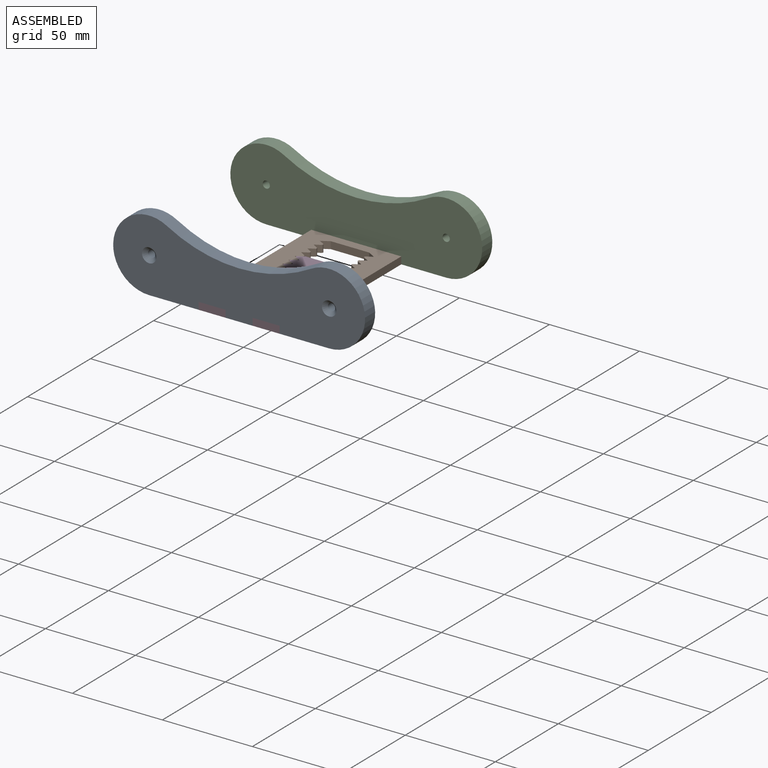
[diagram: assembled view]
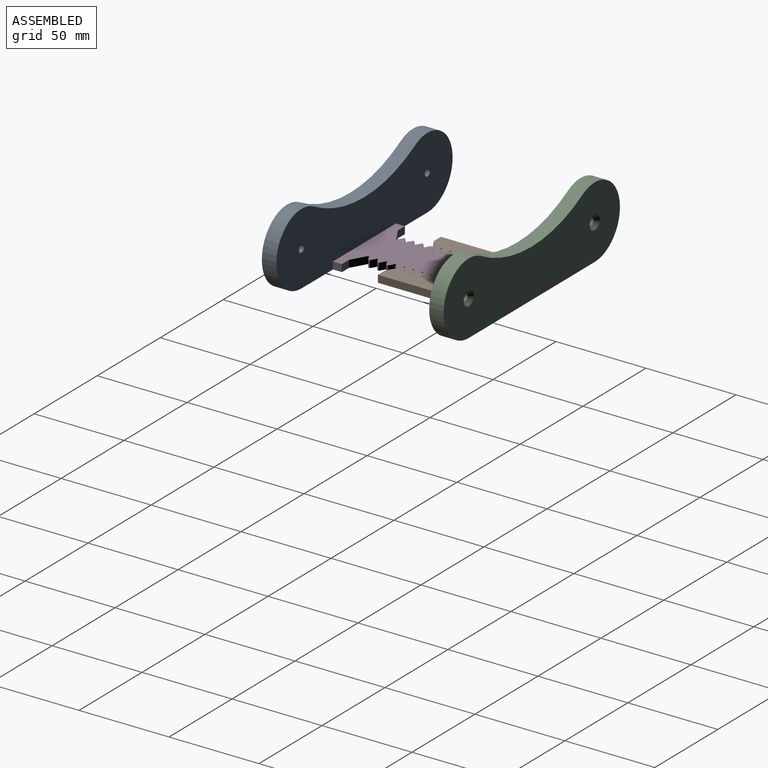
[diagram: assembled view, second angle]
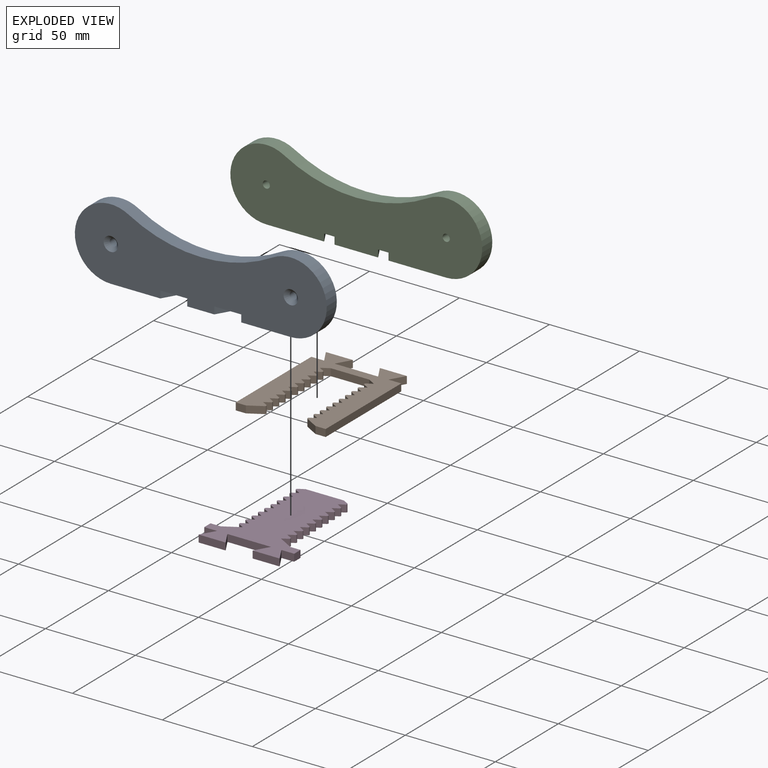
[diagram: exploded view]
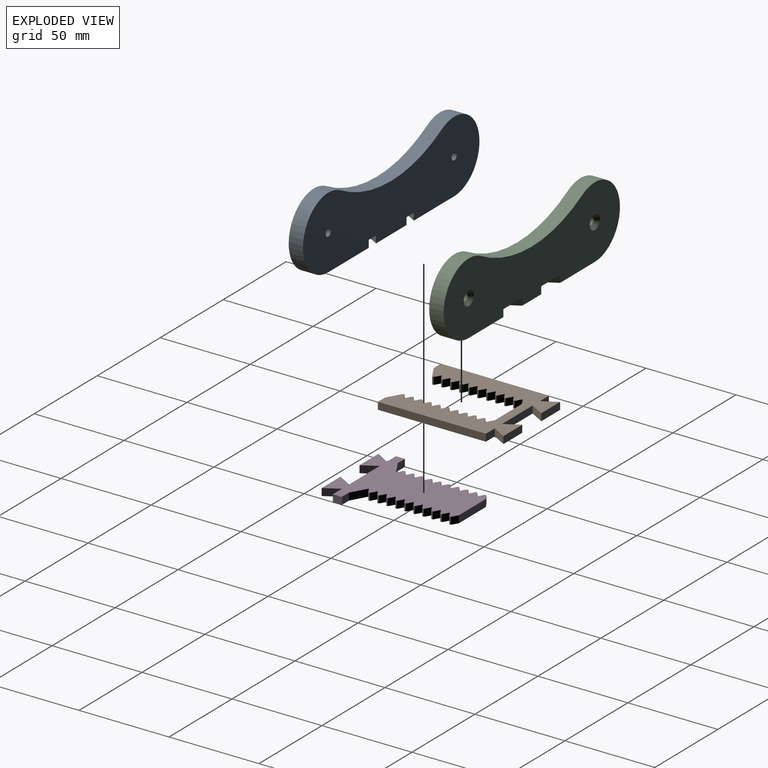
[diagram: exploded view, second angle]
ASSEMBLY  parts=4 mates=2
PART A: 18 faces, bbox 140x8x40 mm
  f0: plane 24.24x8mm, normal (0,0,-1), area 157mm2, adj f2,f3,f13,f15
  f1: plane 32.12x8mm, normal (0,0,-1), area 238.5mm2, adj f2,f3,f7,f12
  f2: plane 140x40mm, normal (0,-1,0), area 4234.5mm2, adj f0,f1,f4,f5,f6,f7,f9,f11
  f3: plane 140x40mm, normal (0,1,0), area 4383.8mm2, adj f0,f1,f4,f5,f6,f7,f8,f10
  f4: cylinder r=81.16mm len=80.23mm, axis (0,1,0), area 671.3mm2, adj f2,f3,f5,f7
  f5: cylinder r=20mm len=40mm, axis (0,1,0), area 585.4mm2, adj f2,f3,f4,f6
  f6: plane 32.12x8mm, normal (0,0,-1), area 238.5mm2, adj f2,f3,f5,f16
  f7: cylinder r=20mm len=40mm, axis (0,1,0), area 585.4mm2, adj f1,f2,f3,f4
  f8: cylinder r=2mm len=6mm, axis (0,-1,0), area 75.4mm2, adj f3,f9
  f9: cone r=2mm half-angle=45deg, axis (0,-1,0), area 53.3mm2, adj f2,f8
  f10: cylinder r=2mm len=6mm, axis (0,-1,0), area 75.4mm2, adj f3,f11
  f11: cone r=2mm half-angle=45deg, axis (0,-1,0), area 53.3mm2, adj f2,f10
  f12: plane 8x4.62mm, normal (-0.87,-0.5,0), area 37mm2, adj f1,f2,f3,f14
  f13: plane 8x4.62mm, normal (0.87,-0.5,0), area 37mm2, adj f0,f2,f3,f14
  f14: plane 15x8mm, normal (0,0,-1), area 83mm2, adj f2,f3,f12,f13
  f15: plane 8x4.62mm, normal (-0.87,-0.5,0), area 37mm2, adj f0,f2,f3,f17
  f16: plane 8x4.62mm, normal (0.87,-0.5,0), area 37mm2, adj f2,f3,f6,f17
  f17: plane 15x8mm, normal (0,0,-1), area 83mm2, adj f2,f3,f15,f16
PART B: 78 faces, bbox 50x68x4 mm
  f0: plane 7.12x4mm, normal (0,1,0), area 28.5mm2, adj f3,f4,f6,f55
  f1: plane 24.24x4mm, normal (0,1,0), area 97mm2, adj f4,f6,f52,f56
  f2: plane 5.67x4mm, normal (0,-1,0), area 22.7mm2, adj f3,f4,f6,f51
  f3: plane 60x4mm, normal (1,0,0), area 240mm2, adj f0,f2,f4,f6
  f4: plane 68x50mm, normal (0,0,1), area 1723.8mm2, adj f0,f1,f2,f3,f5,f7,f8,f9
  f5: plane 60x4mm, normal (-1,0,0), area 240mm2, adj f4,f6,f7,f8
  f6: plane 68x50mm, normal (0,0,-1), area 1723.8mm2, adj f0,f1,f2,f3,f5,f7,f8,f9
  f7: plane 5.67x4mm, normal (0,-1,0), area 22.7mm2, adj f4,f5,f6,f50
  f8: plane 7.12x4mm, normal (0,1,0), area 28.5mm2, adj f4,f5,f6,f53
  f9: plane 21.34x4mm, normal (0,-1,0), area 85.4mm2, adj f4,f6,f10,f49
  f10: plane 4.33x4mm, normal (0.5,-0.87,0), area 20mm2, adj f4,f6,f9,f11
  f11: plane 4x3.13mm, normal (0.5,0.87,0), area 14.5mm2, adj f4,f6,f10,f58
  f12: plane 4x3.13mm, normal (0.5,-0.87,0), area 14.5mm2, adj f4,f6,f13,f58
  f13: plane 4x3.13mm, normal (0.5,0.87,0), area 14.5mm2, adj f4,f6,f12,f59
  f14: plane 4x3.13mm, normal (0.5,-0.87,0), area 14.5mm2, adj f4,f6,f15,f59
  f15: plane 4x3.13mm, normal (0.5,0.87,0), area 14.5mm2, adj f4,f6,f14,f60
  f16: plane 4x3.13mm, normal (0.5,-0.87,0), area 14.5mm2, adj f4,f6,f17,f60
  f17: plane 4x3.13mm, normal (0.5,0.87,0), area 14.5mm2, adj f4,f6,f16,f61
  f18: plane 4x3.13mm, normal (0.5,-0.87,0), area 14.5mm2, adj f4,f6,f19,f61
  f19: plane 4x3.13mm, normal (0.5,0.87,0), area 14.5mm2, adj f4,f6,f18,f62
  f20: plane 4x3.13mm, normal (0.5,-0.87,0), area 14.5mm2, adj f4,f6,f21,f62
  f21: plane 4x3.13mm, normal (0.5,0.87,0), area 14.5mm2, adj f4,f6,f20,f63
  f22: plane 4x3.13mm, normal (0.5,-0.87,0), area 14.5mm2, adj f4,f6,f23,f63
  f23: plane 4x3.13mm, normal (0.5,0.87,0), area 14.5mm2, adj f4,f6,f22,f64
  f24: plane 4x3.13mm, normal (0.5,-0.87,0), area 14.5mm2, adj f4,f6,f25,f64
  f25: plane 4x3.13mm, normal (0.5,0.87,0), area 14.5mm2, adj f4,f6,f24,f65
  f26: plane 4x3.13mm, normal (0.5,-0.87,0), area 14.5mm2, adj f4,f6,f27,f65
  f27: plane 4x3.13mm, normal (0.5,0.87,0), area 14.5mm2, adj f4,f6,f26,f66
  f28: plane 4x3.13mm, normal (0.5,-0.87,0), area 14.5mm2, adj f4,f6,f29,f66
  f29: plane 4x3.13mm, normal (0.5,0.87,0), area 14.5mm2, adj f4,f6,f28,f67
  f30: plane 4x3.13mm, normal (-0.5,0.87,0), area 14.5mm2, adj f4,f6,f31,f68
  f31: plane 4x3.13mm, normal (-0.5,-0.87,0), area 14.5mm2, adj f4,f6,f30,f69
  f32: plane 4x3.13mm, normal (-0.5,0.87,0), area 14.5mm2, adj f4,f6,f33,f69
  f33: plane 4x3.13mm, normal (-0.5,-0.87,0), area 14.5mm2, adj f4,f6,f32,f70
  f34: plane 4x3.13mm, normal (-0.5,0.87,0), area 14.5mm2, adj f4,f6,f35,f70
  f35: plane 4x3.13mm, normal (-0.5,-0.87,0), area 14.5mm2, adj f4,f6,f34,f71
  f36: plane 4x3.13mm, normal (-0.5,0.87,0), area 14.5mm2, adj f4,f6,f37,f71
  f37: plane 4x3.13mm, normal (-0.5,-0.87,0), area 14.5mm2, adj f4,f6,f36,f72
  f38: plane 4x3.13mm, normal (-0.5,0.87,0), area 14.5mm2, adj f4,f6,f39,f72
  f39: plane 4x3.13mm, normal (-0.5,-0.87,0), area 14.5mm2, adj f4,f6,f38,f73
  f40: plane 4x3.13mm, normal (-0.5,0.87,0), area 14.5mm2, adj f4,f6,f41,f73
  f41: plane 4x3.13mm, normal (-0.5,-0.87,0), area 14.5mm2, adj f4,f6,f40,f74
  f42: plane 4x3.13mm, normal (-0.5,0.87,0), area 14.5mm2, adj f4,f6,f43,f74
  f43: plane 4x3.13mm, normal (-0.5,-0.87,0), area 14.5mm2, adj f4,f6,f42,f75
  f44: plane 4x3.13mm, normal (-0.5,0.87,0), area 14.5mm2, adj f4,f6,f45,f75
  f45: plane 4x3.13mm, normal (-0.5,-0.87,0), area 14.5mm2, adj f4,f6,f44,f76
  f46: plane 4x3.13mm, normal (-0.5,0.87,0), area 14.5mm2, adj f4,f6,f47,f76
  f47: plane 4x3.13mm, normal (-0.5,-0.87,0), area 14.5mm2, adj f4,f6,f46,f77
  f48: plane 4x3.13mm, normal (-0.5,0.87,0), area 14.5mm2, adj f4,f6,f49,f77
  f49: plane 4.33x4mm, normal (-0.5,-0.87,0), area 20mm2, adj f4,f6,f9,f48
  f50: plane 7.46x4.31mm, normal (0.5,-0.87,0), area 34.5mm2, adj f4,f6,f7,f67
  f51: plane 7.46x4.31mm, normal (-0.5,-0.87,0), area 34.5mm2, adj f2,f4,f6,f68
  f52: plane 8x4.62mm, normal (0.87,-0.5,0), area 37mm2, adj f1,f4,f6,f54
  f53: plane 8x4.62mm, normal (-0.87,-0.5,0), area 37mm2, adj f4,f6,f8,f54
  f54: plane 15x4mm, normal (0,1,0), area 60mm2, adj f4,f6,f52,f53
  f55: plane 8x4.62mm, normal (0.87,-0.5,0), area 37mm2, adj f0,f4,f6,f57
  f56: plane 8x4.62mm, normal (-0.87,-0.5,0), area 37mm2, adj f1,f4,f6,f57
  f57: plane 15x4mm, normal (0,1,0), area 60mm2, adj f4,f6,f55,f56
  f58: cylinder r=0.8mm len=4mm, axis (0,0,1), area 6.7mm2, adj f4,f6,f11,f12
  f59: cylinder r=0.8mm len=4mm, axis (0,0,1), area 6.7mm2, adj f4,f6,f13,f14
  f60: cylinder r=0.8mm len=4mm, axis (0,0,1), area 6.7mm2, adj f4,f6,f15,f16
  f61: cylinder r=0.8mm len=4mm, axis (0,0,1), area 6.7mm2, adj f4,f6,f17,f18
  f62: cylinder r=0.8mm len=4mm, axis (0,0,1), area 6.7mm2, adj f4,f6,f19,f20
  f63: cylinder r=0.8mm len=4mm, axis (0,0,1), area 6.7mm2, adj f4,f6,f21,f22
  f64: cylinder r=0.8mm len=4mm, axis (0,0,1), area 6.7mm2, adj f4,f6,f23,f24
  f65: cylinder r=0.8mm len=4mm, axis (0,0,1), area 6.7mm2, adj f4,f6,f25,f26
  f66: cylinder r=0.8mm len=4mm, axis (0,0,1), area 6.7mm2, adj f4,f6,f27,f28
  f67: cylinder r=0.8mm len=4mm, axis (0,0,1), area 6.7mm2, adj f4,f6,f29,f50
  f68: cylinder r=0.8mm len=4mm, axis (0,0,1), area 6.7mm2, adj f4,f6,f30,f51
  f69: cylinder r=0.8mm len=4mm, axis (0,0,1), area 6.7mm2, adj f4,f6,f31,f32
  f70: cylinder r=0.8mm len=4mm, axis (0,0,1), area 6.7mm2, adj f4,f6,f33,f34
  f71: cylinder r=0.8mm len=4mm, axis (0,0,1), area 6.7mm2, adj f4,f6,f35,f36
  f72: cylinder r=0.8mm len=4mm, axis (0,0,1), area 6.7mm2, adj f4,f6,f37,f38
  f73: cylinder r=0.8mm len=4mm, axis (0,0,1), area 6.7mm2, adj f4,f6,f39,f40
  f74: cylinder r=0.8mm len=4mm, axis (0,0,1), area 6.7mm2, adj f4,f6,f41,f42
  f75: cylinder r=0.8mm len=4mm, axis (0,0,1), area 6.7mm2, adj f4,f6,f43,f44
  f76: cylinder r=0.8mm len=4mm, axis (0,0,1), area 6.7mm2, adj f4,f6,f45,f46
  f77: cylinder r=0.8mm len=4mm, axis (0,0,1), area 6.7mm2, adj f4,f6,f47,f48
PART C: same geometry as A
PART D: 78 faces, bbox 50x68x4 mm
  f0: plane 5x4mm, normal (1,0,0), area 20mm2, adj f3,f4,f5,f18
  f1: plane 5x4mm, normal (-1,0,0), area 20mm2, adj f3,f4,f7,f36
  f2: plane 21.34x4mm, normal (0,-1,0), area 85.4mm2, adj f3,f4,f17,f57
  f3: plane 68x50mm, normal (0,0,1), area 1840.8mm2, adj f0,f1,f2,f5,f6,f7,f8,f9
  f4: plane 68x50mm, normal (0,0,-1), area 1840.8mm2, adj f0,f1,f2,f5,f6,f7,f8,f9
  f5: plane 7.12x4mm, normal (0,1,0), area 28.5mm2, adj f0,f3,f4,f11
  f6: plane 24.24x4mm, normal (0,1,0), area 97mm2, adj f3,f4,f8,f12
  f7: plane 7.12x4mm, normal (0,1,0), area 28.5mm2, adj f1,f3,f4,f9
  f8: plane 8x4.62mm, normal (0.87,-0.5,0), area 37mm2, adj f3,f4,f6,f10
  f9: plane 8x4.62mm, normal (-0.87,-0.5,0), area 37mm2, adj f3,f4,f7,f10
  f10: plane 15x4mm, normal (0,1,0), area 60mm2, adj f3,f4,f8,f9
  f11: plane 8x4.62mm, normal (0.87,-0.5,0), area 37mm2, adj f3,f4,f5,f13
  f12: plane 8x4.62mm, normal (-0.87,-0.5,0), area 37mm2, adj f3,f4,f6,f13
  f13: plane 15x4mm, normal (0,1,0), area 60mm2, adj f3,f4,f11,f12
  f14: plane 4x3.13mm, normal (0.5,0.87,0), area 14.5mm2, adj f3,f4,f35,f77
  f15: plane 4x3.13mm, normal (0.5,-0.87,0), area 14.5mm2, adj f3,f4,f16,f77
  f16: plane 4x3.13mm, normal (0.5,0.87,0), area 14.5mm2, adj f3,f4,f15,f76
  f17: plane 4x3.13mm, normal (0.5,-0.87,0), area 14.5mm2, adj f2,f3,f4,f76
  f18: plane 5.67x4mm, normal (0,-1,0), area 22.7mm2, adj f0,f3,f4,f19
  f19: plane 8.66x5mm, normal (0.5,-0.87,0), area 40mm2, adj f3,f4,f18,f20
  f20: plane 4x3.13mm, normal (0.5,0.87,0), area 14.5mm2, adj f3,f4,f19,f65
  f21: plane 4x3.13mm, normal (0.5,-0.87,0), area 14.5mm2, adj f3,f4,f22,f65
  f22: plane 4x3.13mm, normal (0.5,0.87,0), area 14.5mm2, adj f3,f4,f21,f64
  f23: plane 4x3.13mm, normal (0.5,-0.87,0), area 14.5mm2, adj f3,f4,f24,f64
  f24: plane 4x3.13mm, normal (0.5,0.87,0), area 14.5mm2, adj f3,f4,f23,f63
  f25: plane 4x3.13mm, normal (0.5,-0.87,0), area 14.5mm2, adj f3,f4,f26,f63
  f26: plane 4x3.13mm, normal (0.5,0.87,0), area 14.5mm2, adj f3,f4,f25,f62
  f27: plane 4x3.13mm, normal (0.5,-0.87,0), area 14.5mm2, adj f3,f4,f28,f62
  f28: plane 4x3.13mm, normal (0.5,0.87,0), area 14.5mm2, adj f3,f4,f27,f61
  f29: plane 4x3.13mm, normal (0.5,-0.87,0), area 14.5mm2, adj f3,f4,f30,f61
  f30: plane 4x3.13mm, normal (0.5,0.87,0), area 14.5mm2, adj f3,f4,f29,f60
  f31: plane 4x3.13mm, normal (0.5,-0.87,0), area 14.5mm2, adj f3,f4,f32,f60
  f32: plane 4x3.13mm, normal (0.5,0.87,0), area 14.5mm2, adj f3,f4,f31,f59
  f33: plane 4x3.13mm, normal (0.5,-0.87,0), area 14.5mm2, adj f3,f4,f34,f59
  f34: plane 4x3.13mm, normal (0.5,0.87,0), area 14.5mm2, adj f3,f4,f33,f58
  f35: plane 4x3.13mm, normal (0.5,-0.87,0), area 14.5mm2, adj f3,f4,f14,f58
  f36: plane 5.67x4mm, normal (0,-1,0), area 22.7mm2, adj f1,f3,f4,f37
  f37: plane 8.66x5mm, normal (-0.5,-0.87,0), area 40mm2, adj f3,f4,f36,f38
  f38: plane 4x3.13mm, normal (-0.5,0.87,0), area 14.5mm2, adj f3,f4,f37,f66
  f39: plane 4x3.13mm, normal (-0.5,-0.87,0), area 14.5mm2, adj f3,f4,f40,f66
  f40: plane 4x3.13mm, normal (-0.5,0.87,0), area 14.5mm2, adj f3,f4,f39,f67
  f41: plane 4x3.13mm, normal (-0.5,-0.87,0), area 14.5mm2, adj f3,f4,f42,f67
  f42: plane 4x3.13mm, normal (-0.5,0.87,0), area 14.5mm2, adj f3,f4,f41,f68
  f43: plane 4x3.13mm, normal (-0.5,-0.87,0), area 14.5mm2, adj f3,f4,f44,f68
  f44: plane 4x3.13mm, normal (-0.5,0.87,0), area 14.5mm2, adj f3,f4,f43,f69
  f45: plane 4x3.13mm, normal (-0.5,-0.87,0), area 14.5mm2, adj f3,f4,f46,f69
  f46: plane 4x3.13mm, normal (-0.5,0.87,0), area 14.5mm2, adj f3,f4,f45,f70
  f47: plane 4x3.13mm, normal (-0.5,-0.87,0), area 14.5mm2, adj f3,f4,f48,f70
  f48: plane 4x3.13mm, normal (-0.5,0.87,0), area 14.5mm2, adj f3,f4,f47,f71
  f49: plane 4x3.13mm, normal (-0.5,-0.87,0), area 14.5mm2, adj f3,f4,f50,f71
  f50: plane 4x3.13mm, normal (-0.5,0.87,0), area 14.5mm2, adj f3,f4,f49,f72
  f51: plane 4x3.13mm, normal (-0.5,-0.87,0), area 14.5mm2, adj f3,f4,f52,f72
  f52: plane 4x3.13mm, normal (-0.5,0.87,0), area 14.5mm2, adj f3,f4,f51,f73
  f53: plane 4x3.13mm, normal (-0.5,-0.87,0), area 14.5mm2, adj f3,f4,f54,f73
  f54: plane 4x3.13mm, normal (-0.5,0.87,0), area 14.5mm2, adj f3,f4,f53,f74
  f55: plane 4x3.13mm, normal (-0.5,-0.87,0), area 14.5mm2, adj f3,f4,f56,f74
  f56: plane 4x3.13mm, normal (-0.5,0.87,0), area 14.5mm2, adj f3,f4,f55,f75
  f57: plane 4x3.13mm, normal (-0.5,-0.87,0), area 14.5mm2, adj f2,f3,f4,f75
  f58: cylinder r=0.8mm len=4mm, axis (0,0,1), area 6.7mm2, adj f3,f4,f34,f35
  f59: cylinder r=0.8mm len=4mm, axis (0,0,1), area 6.7mm2, adj f3,f4,f32,f33
  f60: cylinder r=0.8mm len=4mm, axis (0,0,1), area 6.7mm2, adj f3,f4,f30,f31
  f61: cylinder r=0.8mm len=4mm, axis (0,0,1), area 6.7mm2, adj f3,f4,f28,f29
  f62: cylinder r=0.8mm len=4mm, axis (0,0,1), area 6.7mm2, adj f3,f4,f26,f27
  f63: cylinder r=0.8mm len=4mm, axis (0,0,1), area 6.7mm2, adj f3,f4,f24,f25
  f64: cylinder r=0.8mm len=4mm, axis (0,0,1), area 6.7mm2, adj f3,f4,f22,f23
  f65: cylinder r=0.8mm len=4mm, axis (0,0,1), area 6.7mm2, adj f3,f4,f20,f21
  f66: cylinder r=0.8mm len=4mm, axis (0,0,1), area 6.7mm2, adj f3,f4,f38,f39
  f67: cylinder r=0.8mm len=4mm, axis (0,0,1), area 6.7mm2, adj f3,f4,f40,f41
  f68: cylinder r=0.8mm len=4mm, axis (0,0,1), area 6.7mm2, adj f3,f4,f42,f43
  f69: cylinder r=0.8mm len=4mm, axis (0,0,1), area 6.7mm2, adj f3,f4,f44,f45
  f70: cylinder r=0.8mm len=4mm, axis (0,0,1), area 6.7mm2, adj f3,f4,f46,f47
  f71: cylinder r=0.8mm len=4mm, axis (0,0,1), area 6.7mm2, adj f3,f4,f48,f49
  f72: cylinder r=0.8mm len=4mm, axis (0,0,1), area 6.7mm2, adj f3,f4,f50,f51
  f73: cylinder r=0.8mm len=4mm, axis (0,0,1), area 6.7mm2, adj f3,f4,f52,f53
  f74: cylinder r=0.8mm len=4mm, axis (0,0,1), area 6.7mm2, adj f3,f4,f54,f55
  f75: cylinder r=0.8mm len=4mm, axis (0,0,1), area 6.7mm2, adj f3,f4,f56,f57
  f76: cylinder r=0.8mm len=4mm, axis (0,0,1), area 6.7mm2, adj f3,f4,f16,f17
  f77: cylinder r=0.8mm len=4mm, axis (0,0,1), area 6.7mm2, adj f3,f4,f14,f15
PLACE A t=(79.67,-30.65,-8.47)mm
PLACE B t=(79.67,24.35,-26.47)mm
PLACE C rot(axis=(0,0,1),180deg) t=(79.67,54.35,-8.47)mm
PLACE D rot(axis=(0,0,1),180deg) t=(79.67,-0.65,-26.47)mm
MATE fastened D.f3 <-> A.f14  axis (0,0,1) through (94.67,-38.65,-24.47)mm
MATE fastened C.f17 <-> B.f4  axis (0,0,-1) through (94.67,62.35,-24.47)mm
